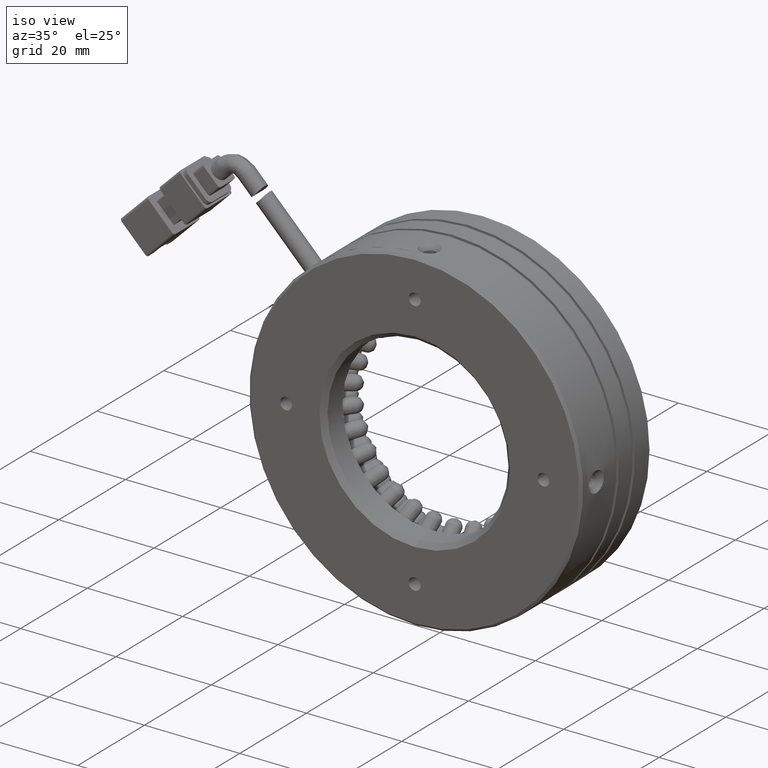
[diagram: clean part render]
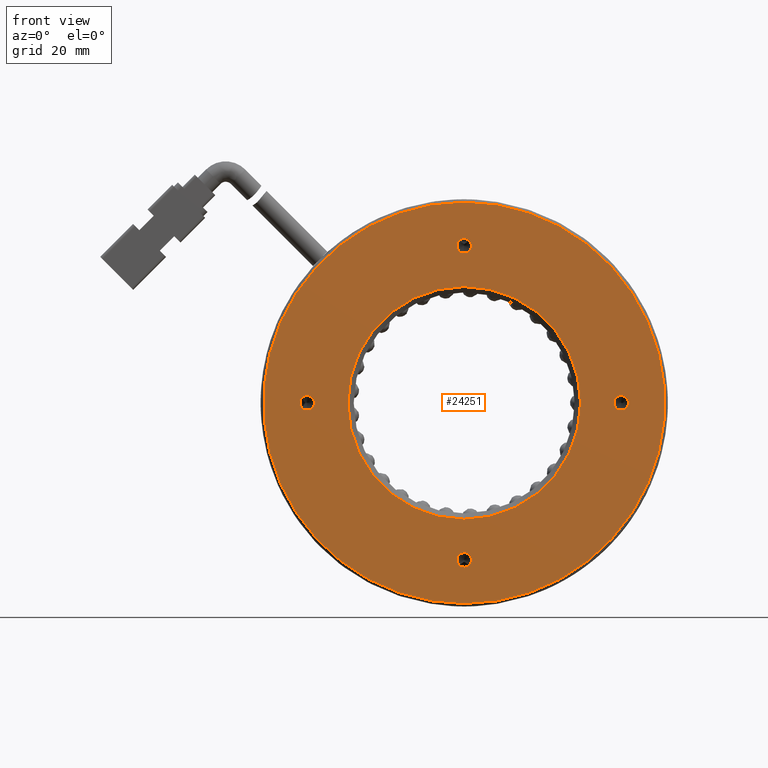
[diagram: tour spotlight — one face highlighted and labeled with its STEP entity id]
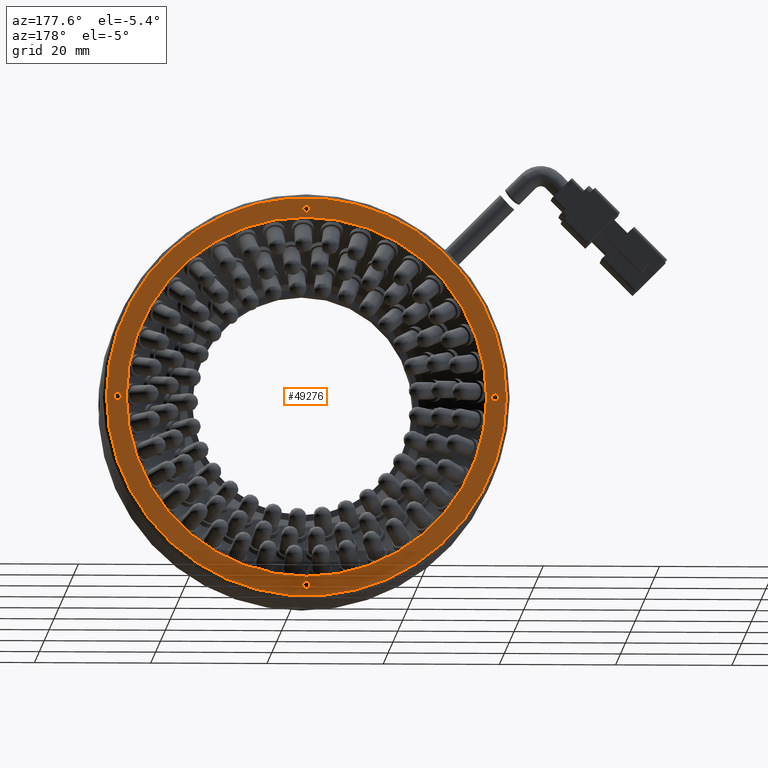
[diagram: tour spotlight — one face highlighted and labeled with its STEP entity id]
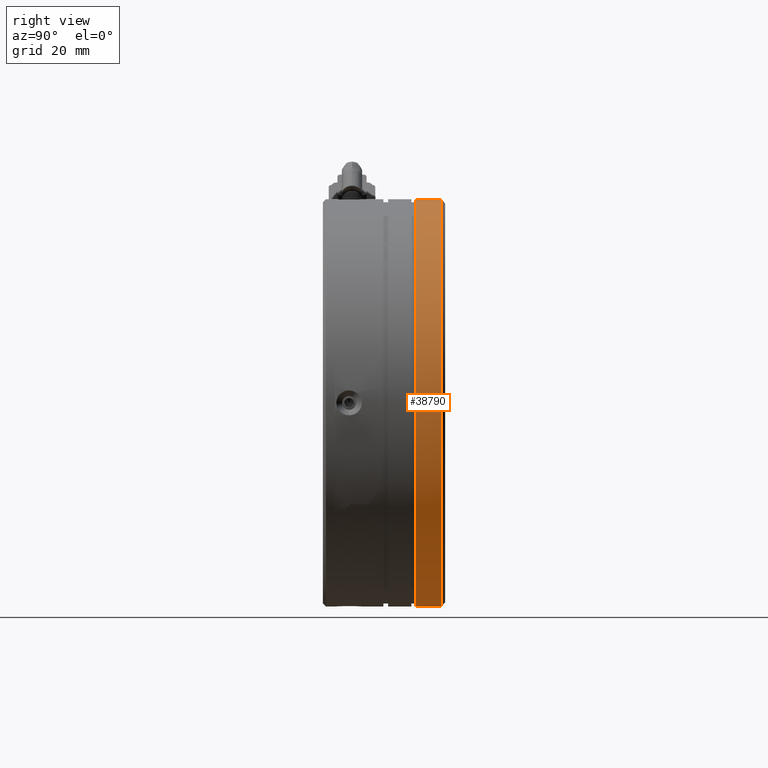
[diagram: tour spotlight — one face highlighted and labeled with its STEP entity id]
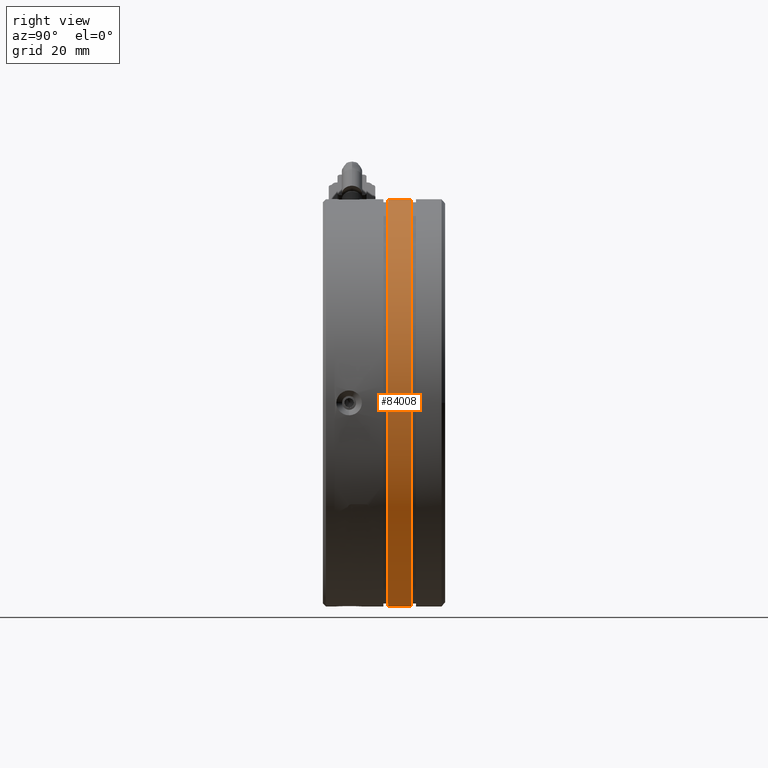
[diagram: tour spotlight — one face highlighted and labeled with its STEP entity id]
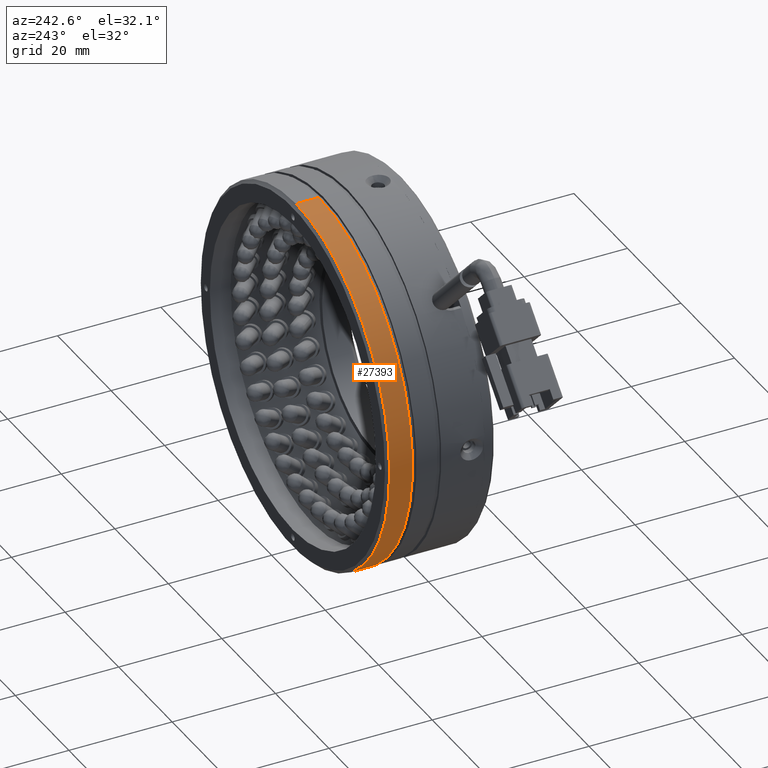
[diagram: tour spotlight — one face highlighted and labeled with its STEP entity id]
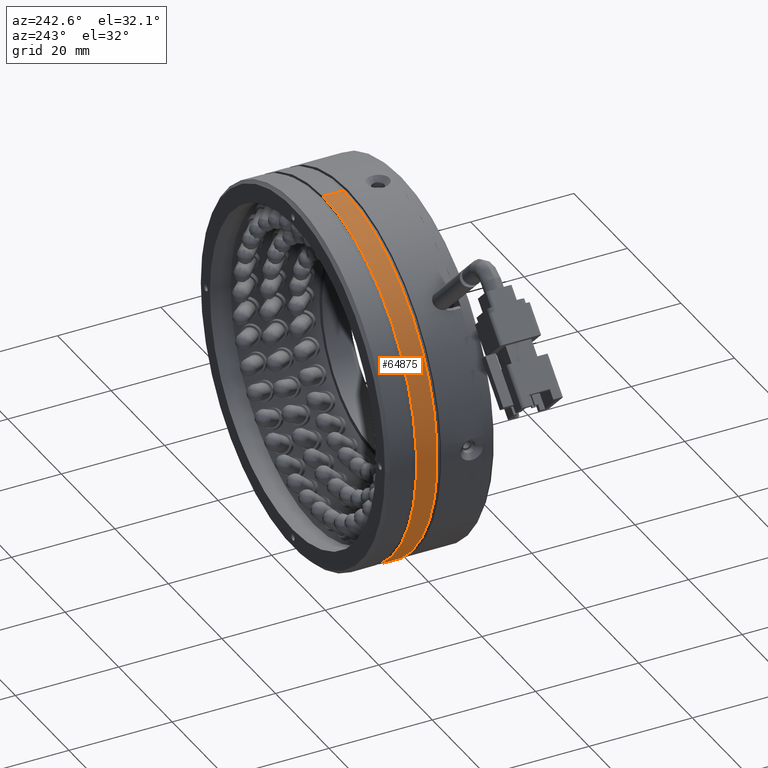
[diagram: tour spotlight — one face highlighted and labeled with its STEP entity id]
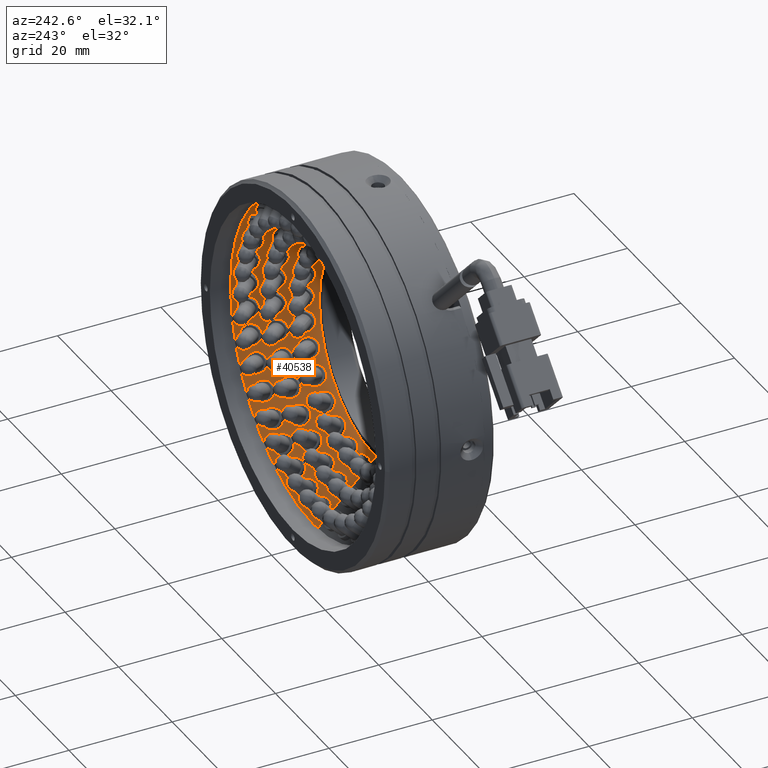
[diagram: tour spotlight — one face highlighted and labeled with its STEP entity id]
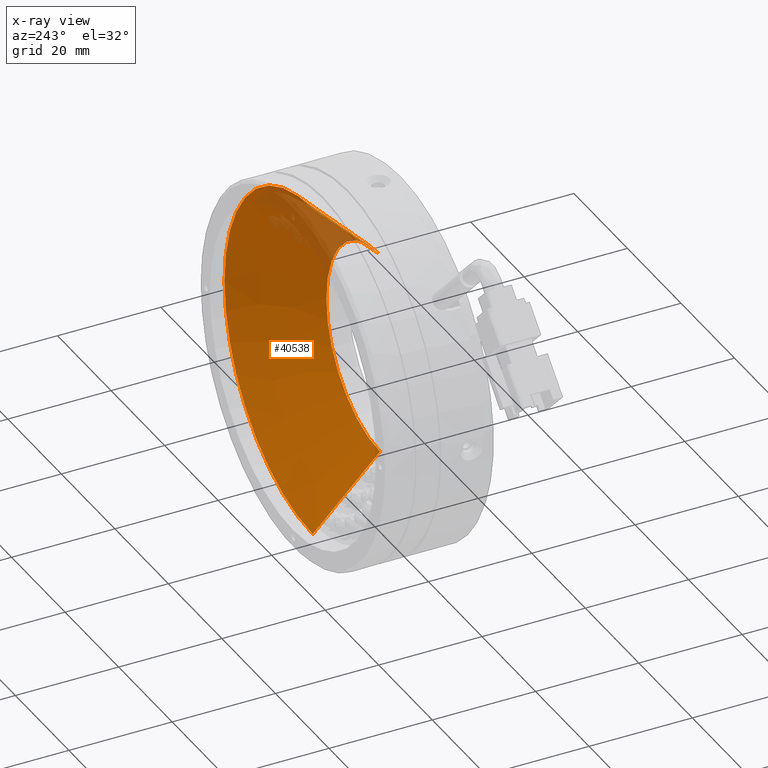
[diagram: x-ray of the same camera — body ghosted, this tour face saturated]
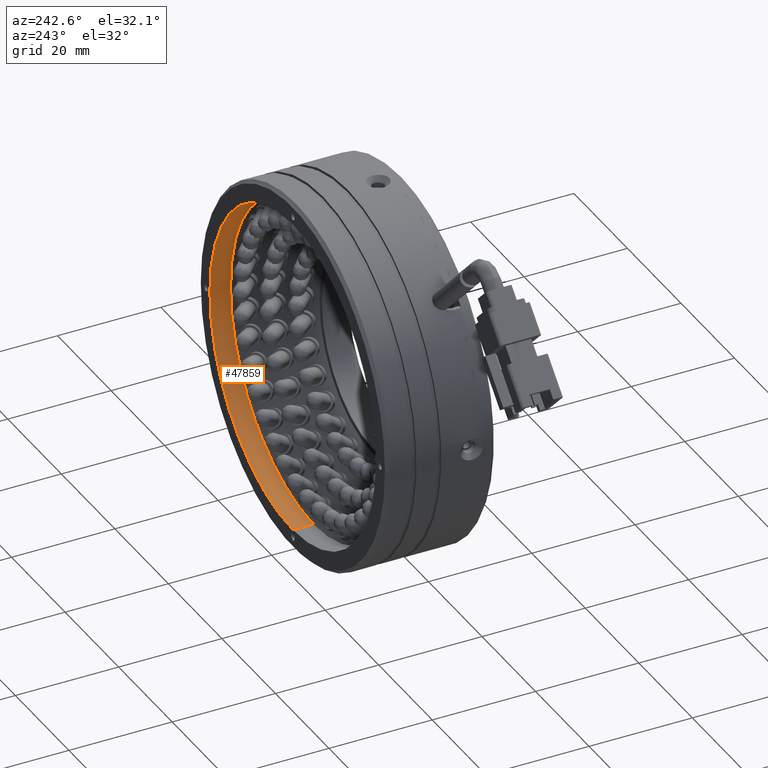
[diagram: tour spotlight — one face highlighted and labeled with its STEP entity id]
A machine part: a face-by-face anatomy tour. The part has 1900 B-rep faces; the first image is the clean iso view, then the 8 largest visible faces are spotlighted one at a time (largest first), each with its STEP entity span.

Face 1 — front view, entity #24251. In plain terms, the highlighted planar face has unit normal (0, 1, 0).
Definition (entity closure, byte-faithful):
#117 = ORIENTED_EDGE ( 'NONE', *, *, #12593, .F. ) ;
#526 = CARTESIAN_POINT ( 'NONE',  ( -29.71607102039149600, -3.692728664891308000, 1.249999999999903200 ) ) ;
#612 = EDGE_CURVE ( 'NONE', #48673, #35953, #79833, .T. ) ;
#799 = CARTESIAN_POINT ( 'NONE',  ( -2.716071020391305400, -3.692728664891308000, -28.24999999999999600 ) ) ;
#1328 = CIRCLE ( 'NONE', #64420, 34.50000000000002800 ) ;
#1868 = DIRECTION ( 'NONE',  ( -0.0000000000000000000, -1.000000000000000000, -0.0000000000000000000 ) ) ;
#3268 = ORIENTED_EDGE ( 'NONE', *, *, #50611, .F. ) ;
#4113 = ORIENTED_EDGE ( 'NONE', *, *, #9443, .F. ) ;
#4326 = CARTESIAN_POINT ( 'NONE',  ( -2.716071020391490200, -3.692728664891308000, -34.50000000000002800 ) ) ;
#4964 = ORIENTED_EDGE ( 'NONE', *, *, #43656, .F. ) ;
#5714 = FACE_BOUND ( 'NONE', #40120, .T. ) ;
#6467 = CIRCLE ( 'NONE', #10381, 1.249999999999997600 ) ;
#6742 = CARTESIAN_POINT ( 'NONE',  ( 24.28392897960850400, -3.692728664891308000, 2.831659657038609400E-013 ) ) ;
#7241 = CARTESIAN_POINT ( 'NONE',  ( -2.716071020391495100, -3.692728664891308000, 25.75000000000000400 ) ) ;
#8209 = ORIENTED_EDGE ( 'NONE', *, *, #51472, .F. ) ;
#9443 = EDGE_CURVE ( 'NONE', #64099, #25253, #1328, .T. ) ;
#9742 = DIRECTION ( 'NONE',  ( 0.0000000000000000000, -1.000000000000000000, 0.0000000000000000000 ) ) ;
#10381 = AXIS2_PLACEMENT_3D ( 'NONE', #17435, #64182, #24132 ) ;
#11475 = DIRECTION ( 'NONE',  ( 0.0000000000000000000, 1.000000000000000000, 0.0000000000000000000 ) ) ;
#11971 = CARTESIAN_POINT ( 'NONE',  ( 24.28392897960850400, -3.692728664891308000, -1.249999999999714500 ) ) ;
#12593 = EDGE_CURVE ( 'NONE', #66089, #70802, #52629, .T. ) ;
#13485 = DIRECTION ( 'NONE',  ( 0.0000000000000000000, 0.0000000000000000000, -1.000000000000000000 ) ) ;
#14045 = AXIS2_PLACEMENT_3D ( 'NONE', #41967, #1868, #48677 ) ;
#14717 = DIRECTION ( 'NONE',  ( 0.0000000000000000000, -1.000000000000000000, 0.0000000000000000000 ) ) ;
#15132 = CIRCLE ( 'NONE', #24823, 1.249999999999997600 ) ;
#15926 = VERTEX_POINT ( 'NONE', #526 ) ;
#16436 = EDGE_CURVE ( 'NONE', #25253, #64099, #49624, .T. ) ;
#16646 = ORIENTED_EDGE ( 'NONE', *, *, #71399, .F. ) ;
#17435 = CARTESIAN_POINT ( 'NONE',  ( -2.716071020391305400, -3.692728664891308000, -27.00000000000000000 ) ) ;
#17679 = CARTESIAN_POINT ( 'NONE',  ( -2.716071020391494600, -3.692728664891308000, -20.00000000000001800 ) ) ;
#17759 = DIRECTION ( 'NONE',  ( -0.0000000000000000000, 1.000000000000000000, 0.0000000000000000000 ) ) ;
#19152 = AXIS2_PLACEMENT_3D ( 'NONE', #49819, #9742, #56547 ) ;
#19966 = ORIENTED_EDGE ( 'NONE', *, *, #67881, .F. ) ;
#20114 = ORIENTED_EDGE ( 'NONE', *, *, #84409, .F. ) ;
#22014 = CARTESIAN_POINT ( 'NONE',  ( -2.716071020391492000, -3.692728664891308000, 20.00000000000001800 ) ) ;
#24132 = DIRECTION ( 'NONE',  ( 0.0000000000000000000, 0.0000000000000000000, -1.000000000000000000 ) ) ;
#24251 = ADVANCED_FACE ( 'NONE', ( #5714, #59145, #79150, #77046, #74944, #57059 ), #64729, .F. ) ;
#24684 = EDGE_LOOP ( 'NONE', ( #3268, #117 ) ) ;
#24823 = AXIS2_PLACEMENT_3D ( 'NONE', #72376, #32252, #79176 ) ;
#24953 = VERTEX_POINT ( 'NONE', #55580 ) ;
#25253 = VERTEX_POINT ( 'NONE', #4326 ) ;
#25586 = CARTESIAN_POINT ( 'NONE',  ( -2.716071020391305400, -3.692728664891308000, -25.75000000000000400 ) ) ;
#25590 = DIRECTION ( 'NONE',  ( -0.0000000000000000000, -1.000000000000000000, -0.0000000000000000000 ) ) ;
#26252 = EDGE_CURVE ( 'NONE', #37030, #77363, #6467, .T. ) ;
#26316 = ORIENTED_EDGE ( 'NONE', *, *, #16436, .F. ) ;
#27283 = AXIS2_PLACEMENT_3D ( 'NONE', #54826, #14717, #61542 ) ;
#27381 = DIRECTION ( 'NONE',  ( -0.0000000000000000000, 1.000000000000000000, 0.0000000000000000000 ) ) ;
#28863 = CIRCLE ( 'NONE', #19152, 20.00000000000001800 ) ;
#30927 = EDGE_LOOP ( 'NONE', ( #8209, #20114 ) ) ;
#32252 = DIRECTION ( 'NONE',  ( -0.0000000000000000000, -1.000000000000000000, -0.0000000000000000000 ) ) ;
#34788 = CIRCLE ( 'NONE', #64501, 1.249999999999997600 ) ;
#34995 = CARTESIAN_POINT ( 'NONE',  ( 24.28392897960850400, -3.692728664891308000, 1.250000000000280900 ) ) ;
#35173 = DIRECTION ( 'NONE',  ( -0.0000000000000000000, -1.000000000000000000, -0.0000000000000000000 ) ) ;
#35953 = VERTEX_POINT ( 'NONE', #34995 ) ;
#36792 = VERTEX_POINT ( 'NONE', #58760 ) ;
#37030 = VERTEX_POINT ( 'NONE', #799 ) ;
#37969 = VERTEX_POINT ( 'NONE', #7241 ) ;
#38343 = AXIS2_PLACEMENT_3D ( 'NONE', #75285, #35173, #82041 ) ;
#39543 = AXIS2_PLACEMENT_3D ( 'NONE', #6742, #53573, #13485 ) ;
#39986 = CARTESIAN_POINT ( 'NONE',  ( -29.71607102039149600, -3.692728664891308000, -9.462597340633178500E-014 ) ) ;
#40120 = EDGE_LOOP ( 'NONE', ( #4964, #19966 ) ) ;
#40949 = DIRECTION ( 'NONE',  ( 0.0000000000000000000, 0.0000000000000000000, -1.000000000000000000 ) ) ;
#41246 = DIRECTION ( 'NONE',  ( -0.0000000000000000000, -1.000000000000000000, -0.0000000000000000000 ) ) ;
#41265 = AXIS2_PLACEMENT_3D ( 'NONE', #41535, #41246, #40949 ) ;
#41535 = CARTESIAN_POINT ( 'NONE',  ( 24.28392897960850400, -3.692728664891308000, 2.831659657038609400E-013 ) ) ;
#41967 = CARTESIAN_POINT ( 'NONE',  ( -2.716071020391495100, -3.692728664891308000, 27.00000000000000000 ) ) ;
#42133 = CARTESIAN_POINT ( 'NONE',  ( -2.716071020391494600, -3.692728664891308000, 34.50000000000002800 ) ) ;
#43656 = EDGE_CURVE ( 'NONE', #37969, #36792, #74778, .T. ) ;
#45908 = EDGE_CURVE ( 'NONE', #35953, #48673, #73878, .T. ) ;
#46728 = DIRECTION ( 'NONE',  ( 0.0000000000000000000, 0.0000000000000000000, -1.000000000000000000 ) ) ;
#48673 = VERTEX_POINT ( 'NONE', #11971 ) ;
#48677 = DIRECTION ( 'NONE',  ( 0.0000000000000000000, 0.0000000000000000000, -1.000000000000000000 ) ) ;
#49624 = CIRCLE ( 'NONE', #57791, 34.50000000000002800 ) ;
#49819 = CARTESIAN_POINT ( 'NONE',  ( -2.716071020391494600, -3.692728664891308000, 0.0000000000000000000 ) ) ;
#50611 = EDGE_CURVE ( 'NONE', #70802, #66089, #28863, .T. ) ;
#51472 = EDGE_CURVE ( 'NONE', #24953, #15926, #60908, .T. ) ;
#51602 = CARTESIAN_POINT ( 'NONE',  ( -21.71607102039149200, -3.692728664891308000, 0.0000000000000000000 ) ) ;
#52629 = CIRCLE ( 'NONE', #27283, 20.00000000000001800 ) ;
#53573 = DIRECTION ( 'NONE',  ( -0.0000000000000000000, -1.000000000000000000, -0.0000000000000000000 ) ) ;
#53981 = AXIS2_PLACEMENT_3D ( 'NONE', #39986, #86904, #46728 ) ;
#54069 = ORIENTED_EDGE ( 'NONE', *, *, #612, .F. ) ;
#54826 = CARTESIAN_POINT ( 'NONE',  ( -2.716071020391494600, -3.692728664891308000, 0.0000000000000000000 ) ) ;
#55580 = CARTESIAN_POINT ( 'NONE',  ( -29.71607102039149600, -3.692728664891308000, -1.250000000000092100 ) ) ;
#56547 = DIRECTION ( 'NONE',  ( 0.0000000000000000000, 0.0000000000000000000, -1.000000000000000000 ) ) ;
#57059 = FACE_BOUND ( 'NONE', #24684, .T. ) ;
#57783 = CARTESIAN_POINT ( 'NONE',  ( -2.716071020391494600, -3.692728664891308000, 0.0000000000000000000 ) ) ;
#57791 = AXIS2_PLACEMENT_3D ( 'NONE', #67428, #27381, #74254 ) ;
#58294 = DIRECTION ( 'NONE',  ( 0.0000000000000000000, -0.0000000000000000000, 1.000000000000000000 ) ) ;
#58760 = CARTESIAN_POINT ( 'NONE',  ( -2.716071020391495100, -3.692728664891308000, 28.24999999999999600 ) ) ;
#59145 = FACE_BOUND ( 'NONE', #30927, .T. ) ;
#60908 = CIRCLE ( 'NONE', #53981, 1.249999999999997600 ) ;
#61139 = EDGE_LOOP ( 'NONE', ( #75168, #16646 ) ) ;
#61542 = DIRECTION ( 'NONE',  ( 0.0000000000000000000, 0.0000000000000000000, -1.000000000000000000 ) ) ;
#64099 = VERTEX_POINT ( 'NONE', #42133 ) ;
#64182 = DIRECTION ( 'NONE',  ( -0.0000000000000000000, -1.000000000000000000, -0.0000000000000000000 ) ) ;
#64420 = AXIS2_PLACEMENT_3D ( 'NONE', #57783, #17759, #64508 ) ;
#64430 = AXIS2_PLACEMENT_3D ( 'NONE', #51602, #11475, #58294 ) ;
#64501 = AXIS2_PLACEMENT_3D ( 'NONE', #65585, #25590, #72378 ) ;
#64508 = DIRECTION ( 'NONE',  ( 0.0000000000000000000, 0.0000000000000000000, 1.000000000000000000 ) ) ;
#64729 = PLANE ( 'NONE',  #64430 ) ;
#65585 = CARTESIAN_POINT ( 'NONE',  ( -29.71607102039149600, -3.692728664891308000, -9.462597340633178500E-014 ) ) ;
#66089 = VERTEX_POINT ( 'NONE', #22014 ) ;
#66439 = EDGE_LOOP ( 'NONE', ( #4113, #26316 ) ) ;
#67428 = CARTESIAN_POINT ( 'NONE',  ( -2.716071020391494600, -3.692728664891308000, 0.0000000000000000000 ) ) ;
#67881 = EDGE_CURVE ( 'NONE', #36792, #37969, #76409, .T. ) ;
#70802 = VERTEX_POINT ( 'NONE', #17679 ) ;
#71399 = EDGE_CURVE ( 'NONE', #77363, #37030, #15132, .T. ) ;
#72376 = CARTESIAN_POINT ( 'NONE',  ( -2.716071020391305400, -3.692728664891308000, -27.00000000000000000 ) ) ;
#72378 = DIRECTION ( 'NONE',  ( 0.0000000000000000000, 0.0000000000000000000, -1.000000000000000000 ) ) ;
#73878 = CIRCLE ( 'NONE', #39543, 1.249999999999997600 ) ;
#74254 = DIRECTION ( 'NONE',  ( 0.0000000000000000000, 0.0000000000000000000, 1.000000000000000000 ) ) ;
#74778 = CIRCLE ( 'NONE', #14045, 1.249999999999997600 ) ;
#74944 = FACE_OUTER_BOUND ( 'NONE', #66439, .T. ) ;
#75168 = ORIENTED_EDGE ( 'NONE', *, *, #26252, .F. ) ;
#75285 = CARTESIAN_POINT ( 'NONE',  ( -2.716071020391495100, -3.692728664891308000, 27.00000000000000000 ) ) ;
#76409 = CIRCLE ( 'NONE', #38343, 1.249999999999997600 ) ;
#77046 = FACE_BOUND ( 'NONE', #77900, .T. ) ;
#77363 = VERTEX_POINT ( 'NONE', #25586 ) ;
#77900 = EDGE_LOOP ( 'NONE', ( #54069, #81653 ) ) ;
#79150 = FACE_BOUND ( 'NONE', #61139, .T. ) ;
#79176 = DIRECTION ( 'NONE',  ( 0.0000000000000000000, 0.0000000000000000000, -1.000000000000000000 ) ) ;
#79833 = CIRCLE ( 'NONE', #41265, 1.249999999999997600 ) ;
#81653 = ORIENTED_EDGE ( 'NONE', *, *, #45908, .F. ) ;
#82041 = DIRECTION ( 'NONE',  ( 0.0000000000000000000, 0.0000000000000000000, -1.000000000000000000 ) ) ;
#84409 = EDGE_CURVE ( 'NONE', #15926, #24953, #34788, .T. ) ;
#86904 = DIRECTION ( 'NONE',  ( -0.0000000000000000000, -1.000000000000000000, -0.0000000000000000000 ) ) ;

Face 2 — auxiliary view, entity #49276. In plain terms, the highlighted planar face has unit normal (0, -1, 0).
Definition (entity closure, byte-faithful):
#478 = EDGE_CURVE ( 'NONE', #86418, #62394, #18057, .T. ) ;
#1899 = CIRCLE ( 'NONE', #53892, 0.6250000000000005600 ) ;
#2141 = CARTESIAN_POINT ( 'NONE',  ( 29.78392897960851100, 17.30727133510869800, -0.6250000000000016700 ) ) ;
#4684 = ORIENTED_EDGE ( 'NONE', *, *, #86537, .F. ) ;
#5918 = VERTEX_POINT ( 'NONE', #2141 ) ;
#6457 = DIRECTION ( 'NONE',  ( -0.0000000000000000000, 1.000000000000000000, -0.0000000000000000000 ) ) ;
#8079 = CIRCLE ( 'NONE', #61682, 0.6250000000000005600 ) ;
#9250 = CIRCLE ( 'NONE', #27914, 0.6250000000000005600 ) ;
#11376 = DIRECTION ( 'NONE',  ( -0.0000000000000000000, -1.000000000000000000, -0.0000000000000000000 ) ) ;
#11777 = CARTESIAN_POINT ( 'NONE',  ( -2.716071020391376500, 17.30727133510869800, -32.50000000000000000 ) ) ;
#11974 = CARTESIAN_POINT ( 'NONE',  ( -2.716071020391830800, 17.30727133510869800, 33.12500000000000000 ) ) ;
#12547 = EDGE_CURVE ( 'NONE', #26847, #74570, #16095, .T. ) ;
#13087 = AXIS2_PLACEMENT_3D ( 'NONE', #51487, #11376, #58189 ) ;
#13546 = EDGE_LOOP ( 'NONE', ( #51037, #80149 ) ) ;
#13589 = FACE_BOUND ( 'NONE', #46759, .T. ) ;
#13902 = CARTESIAN_POINT ( 'NONE',  ( -2.716071020391486200, 17.30727133510869800, 31.00000000000003600 ) ) ;
#15776 = EDGE_LOOP ( 'NONE', ( #63177, #33968 ) ) ;
#16095 = CIRCLE ( 'NONE', #60333, 0.6250000000000005600 ) ;
#18057 = CIRCLE ( 'NONE', #29467, 0.6250000000000005600 ) ;
#18198 = CARTESIAN_POINT ( 'NONE',  ( -2.716071020391830800, 17.30727133510869800, 32.50000000000000000 ) ) ;
#18410 = CARTESIAN_POINT ( 'NONE',  ( 29.78392897960851100, 17.30727133510869800, -1.131636017531745300E-015 ) ) ;
#18597 = DIRECTION ( 'NONE',  ( 0.0000000000000000000, 0.0000000000000000000, 1.000000000000000000 ) ) ;
#19286 = CARTESIAN_POINT ( 'NONE',  ( -37.11607102039153000, 17.30727133510869100, 3.117888375509573500E-015 ) ) ;
#22650 = ORIENTED_EDGE ( 'NONE', *, *, #38675, .F. ) ;
#23870 = VERTEX_POINT ( 'NONE', #13902 ) ;
#24927 = DIRECTION ( 'NONE',  ( 0.0000000000000000000, 0.0000000000000000000, 1.000000000000000000 ) ) ;
#25125 = DIRECTION ( 'NONE',  ( 0.0000000000000000000, 0.0000000000000000000, 1.000000000000000000 ) ) ;
#26060 = CARTESIAN_POINT ( 'NONE',  ( -2.716071020391490200, 17.30727133510869100, -1.131636017531745300E-015 ) ) ;
#26847 = VERTEX_POINT ( 'NONE', #44179 ) ;
#27334 = DIRECTION ( 'NONE',  ( -0.0000000000000000000, 1.000000000000000000, -0.0000000000000000000 ) ) ;
#27536 = CARTESIAN_POINT ( 'NONE',  ( 29.78392897960851100, 17.30727133510869800, 0.6249999999999994400 ) ) ;
#27708 = DIRECTION ( 'NONE',  ( 0.0000000000000000000, 0.0000000000000000000, 1.000000000000000000 ) ) ;
#27914 = AXIS2_PLACEMENT_3D ( 'NONE', #34242, #81140, #40970 ) ;
#28004 = DIRECTION ( 'NONE',  ( -0.0000000000000000000, 1.000000000000000000, -0.0000000000000000000 ) ) ;
#28194 = CIRCLE ( 'NONE', #60662, 34.40000000000004100 ) ;
#28285 = CARTESIAN_POINT ( 'NONE',  ( -2.716071020391830800, 17.30727133510869800, 32.50000000000000000 ) ) ;
#29467 = AXIS2_PLACEMENT_3D ( 'NONE', #28285, #28004, #27708 ) ;
#29853 = VERTEX_POINT ( 'NONE', #66497 ) ;
#30948 = CIRCLE ( 'NONE', #56355, 31.00000000000003600 ) ;
#31043 = CARTESIAN_POINT ( 'NONE',  ( -2.716071020391490200, 17.30727133510869800, -1.131636017531745300E-015 ) ) ;
#31334 = EDGE_CURVE ( 'NONE', #36264, #81904, #9250, .T. ) ;
#31339 = VERTEX_POINT ( 'NONE', #27536 ) ;
#32738 = DIRECTION ( 'NONE',  ( 1.000000000000000000, 0.0000000000000000000, 0.0000000000000000000 ) ) ;
#33968 = ORIENTED_EDGE ( 'NONE', *, *, #79733, .F. ) ;
#34242 = CARTESIAN_POINT ( 'NONE',  ( -2.716071020391376500, 17.30727133510869800, -32.50000000000000000 ) ) ;
#34546 = AXIS2_PLACEMENT_3D ( 'NONE', #46554, #6457, #53288 ) ;
#34681 = EDGE_CURVE ( 'NONE', #31339, #5918, #41121, .T. ) ;
#35264 = CARTESIAN_POINT ( 'NONE',  ( -2.716071020391490200, 17.30727133510869100, -1.131636017531745300E-015 ) ) ;
#36264 = VERTEX_POINT ( 'NONE', #38399 ) ;
#37439 = AXIS2_PLACEMENT_3D ( 'NONE', #78392, #38230, #85125 ) ;
#37796 = DIRECTION ( 'NONE',  ( 0.0000000000000000000, 0.0000000000000000000, -1.000000000000000000 ) ) ;
#38084 = CARTESIAN_POINT ( 'NONE',  ( -2.716071020391830800, 17.30727133510869800, 31.87500000000000000 ) ) ;
#38230 = DIRECTION ( 'NONE',  ( 0.0000000000000000000, -1.000000000000000000, 0.0000000000000000000 ) ) ;
#38338 = DIRECTION ( 'NONE',  ( -0.0000000000000000000, 1.000000000000000000, -0.0000000000000000000 ) ) ;
#38399 = CARTESIAN_POINT ( 'NONE',  ( -2.716071020391376500, 17.30727133510869800, -31.87500000000000000 ) ) ;
#38508 = CARTESIAN_POINT ( 'NONE',  ( -2.716071020391376500, 17.30727133510869800, -33.12500000000000000 ) ) ;
#38675 = EDGE_CURVE ( 'NONE', #29853, #52963, #69068, .T. ) ;
#39587 = ORIENTED_EDGE ( 'NONE', *, *, #60600, .T. ) ;
#40970 = DIRECTION ( 'NONE',  ( 0.0000000000000000000, 0.0000000000000000000, 1.000000000000000000 ) ) ;
#41121 = CIRCLE ( 'NONE', #75154, 0.6250000000000005600 ) ;
#41961 = DIRECTION ( 'NONE',  ( 1.000000000000000000, 0.0000000000000000000, 0.0000000000000000000 ) ) ;
#42626 = CIRCLE ( 'NONE', #71700, 0.6250000000000005600 ) ;
#44179 = CARTESIAN_POINT ( 'NONE',  ( -35.21607102039148900, 17.30727133510869800, 0.6249999999999994400 ) ) ;
#45715 = EDGE_CURVE ( 'NONE', #23870, #62571, #30948, .T. ) ;
#46554 = CARTESIAN_POINT ( 'NONE',  ( -35.21607102039148900, 17.30727133510869800, -1.131636017531745300E-015 ) ) ;
#46759 = EDGE_LOOP ( 'NONE', ( #62201, #70060 ) ) ;
#47080 = FACE_BOUND ( 'NONE', #13546, .T. ) ;
#47654 = CARTESIAN_POINT ( 'NONE',  ( -2.716071020391490200, 17.30727133510869800, -31.00000000000003600 ) ) ;
#49276 = ADVANCED_FACE ( 'NONE', ( #82792, #51293, #84867, #13589, #64851, #47080 ), #84827, .F. ) ;
#50180 = EDGE_CURVE ( 'NONE', #62394, #86418, #8079, .T. ) ;
#51037 = ORIENTED_EDGE ( 'NONE', *, *, #50180, .F. ) ;
#51293 = FACE_OUTER_BOUND ( 'NONE', #56067, .T. ) ;
#51487 = CARTESIAN_POINT ( 'NONE',  ( -2.716071020391490200, 17.30727133510869800, -1.131636017531745300E-015 ) ) ;
#52963 = VERTEX_POINT ( 'NONE', #19286 ) ;
#53288 = DIRECTION ( 'NONE',  ( 0.0000000000000000000, 0.0000000000000000000, 1.000000000000000000 ) ) ;
#53534 = EDGE_CURVE ( 'NONE', #81904, #36264, #42626, .T. ) ;
#53892 = AXIS2_PLACEMENT_3D ( 'NONE', #78509, #38338, #85253 ) ;
#56067 = EDGE_LOOP ( 'NONE', ( #22650, #78874 ) ) ;
#56355 = AXIS2_PLACEMENT_3D ( 'NONE', #31043, #77997, #37796 ) ;
#56546 = EDGE_LOOP ( 'NONE', ( #39587, #62309 ) ) ;
#57541 = CIRCLE ( 'NONE', #34546, 0.6250000000000005600 ) ;
#58189 = DIRECTION ( 'NONE',  ( 0.0000000000000000000, 0.0000000000000000000, -1.000000000000000000 ) ) ;
#58618 = DIRECTION ( 'NONE',  ( -0.0000000000000000000, 1.000000000000000000, -0.0000000000000000000 ) ) ;
#60333 = AXIS2_PLACEMENT_3D ( 'NONE', #67384, #27334, #74206 ) ;
#60600 = EDGE_CURVE ( 'NONE', #62571, #23870, #81074, .T. ) ;
#60662 = AXIS2_PLACEMENT_3D ( 'NONE', #26060, #72887, #32738 ) ;
#61682 = AXIS2_PLACEMENT_3D ( 'NONE', #18198, #64932, #24927 ) ;
#62176 = AXIS2_PLACEMENT_3D ( 'NONE', #35264, #82135, #41961 ) ;
#62201 = ORIENTED_EDGE ( 'NONE', *, *, #31334, .F. ) ;
#62309 = ORIENTED_EDGE ( 'NONE', *, *, #45715, .T. ) ;
#62394 = VERTEX_POINT ( 'NONE', #11974 ) ;
#62571 = VERTEX_POINT ( 'NONE', #47654 ) ;
#63177 = ORIENTED_EDGE ( 'NONE', *, *, #34681, .F. ) ;
#64629 = CARTESIAN_POINT ( 'NONE',  ( -35.21607102039148900, 17.30727133510869800, -0.6250000000000016700 ) ) ;
#64851 = FACE_BOUND ( 'NONE', #15776, .T. ) ;
#64932 = DIRECTION ( 'NONE',  ( -0.0000000000000000000, 1.000000000000000000, -0.0000000000000000000 ) ) ;
#65131 = DIRECTION ( 'NONE',  ( -0.0000000000000000000, 1.000000000000000000, -0.0000000000000000000 ) ) ;
#66495 = EDGE_LOOP ( 'NONE', ( #71928, #4684 ) ) ;
#66497 = CARTESIAN_POINT ( 'NONE',  ( 31.68392897960855200, 17.30727133510869100, -1.131636017531745300E-015 ) ) ;
#67384 = CARTESIAN_POINT ( 'NONE',  ( -35.21607102039148900, 17.30727133510869800, -1.131636017531745300E-015 ) ) ;
#69068 = CIRCLE ( 'NONE', #62176, 34.40000000000004100 ) ;
#70060 = ORIENTED_EDGE ( 'NONE', *, *, #53534, .F. ) ;
#71700 = AXIS2_PLACEMENT_3D ( 'NONE', #11777, #58618, #18597 ) ;
#71928 = ORIENTED_EDGE ( 'NONE', *, *, #12547, .F. ) ;
#72887 = DIRECTION ( 'NONE',  ( -4.956352788505163400E-017, -1.000000000000000000, 0.0000000000000000000 ) ) ;
#74206 = DIRECTION ( 'NONE',  ( 0.0000000000000000000, 0.0000000000000000000, 1.000000000000000000 ) ) ;
#74570 = VERTEX_POINT ( 'NONE', #64629 ) ;
#75154 = AXIS2_PLACEMENT_3D ( 'NONE', #18410, #65131, #25125 ) ;
#76190 = EDGE_CURVE ( 'NONE', #52963, #29853, #28194, .T. ) ;
#77997 = DIRECTION ( 'NONE',  ( -0.0000000000000000000, -1.000000000000000000, -0.0000000000000000000 ) ) ;
#78392 = CARTESIAN_POINT ( 'NONE',  ( -37.71607102039152400, 17.30727133510869800, -1.131636017531745300E-015 ) ) ;
#78509 = CARTESIAN_POINT ( 'NONE',  ( 29.78392897960851100, 17.30727133510869800, -1.131636017531745300E-015 ) ) ;
#78874 = ORIENTED_EDGE ( 'NONE', *, *, #76190, .F. ) ;
#79733 = EDGE_CURVE ( 'NONE', #5918, #31339, #1899, .T. ) ;
#80149 = ORIENTED_EDGE ( 'NONE', *, *, #478, .F. ) ;
#81074 = CIRCLE ( 'NONE', #13087, 31.00000000000003600 ) ;
#81140 = DIRECTION ( 'NONE',  ( -0.0000000000000000000, 1.000000000000000000, -0.0000000000000000000 ) ) ;
#81904 = VERTEX_POINT ( 'NONE', #38508 ) ;
#82135 = DIRECTION ( 'NONE',  ( -4.956352788505163400E-017, -1.000000000000000000, 0.0000000000000000000 ) ) ;
#82792 = FACE_BOUND ( 'NONE', #56546, .T. ) ;
#84827 = PLANE ( 'NONE',  #37439 ) ;
#84867 = FACE_BOUND ( 'NONE', #66495, .T. ) ;
#85125 = DIRECTION ( 'NONE',  ( 0.0000000000000000000, -0.0000000000000000000, -1.000000000000000000 ) ) ;
#85253 = DIRECTION ( 'NONE',  ( 0.0000000000000000000, 0.0000000000000000000, 1.000000000000000000 ) ) ;
#86418 = VERTEX_POINT ( 'NONE', #38084 ) ;
#86537 = EDGE_CURVE ( 'NONE', #74570, #26847, #57541, .T. ) ;

Face 3 — right view, entity #38790. In plain terms, the highlighted cylindrical surface (partial cylindrical patch) has radius 35 mm, axis along (-0, -1, -0).
Definition (entity closure, byte-faithful):
#296 = CIRCLE ( 'NONE', #43613, 35.00000000000001400 ) ;
#1403 = LINE ( 'NONE', #31174, #52689 ) ;
#3114 = CIRCLE ( 'NONE', #51824, 35.00000000000001400 ) ;
#3295 = DIRECTION ( 'NONE',  ( 0.0000000000000000000, 0.0000000000000000000, -1.000000000000000000 ) ) ;
#4036 = CYLINDRICAL_SURFACE ( 'NONE', #4925, 35.00000000000001400 ) ;
#4925 = AXIS2_PLACEMENT_3D ( 'NONE', #22966, #63284, #3295 ) ;
#6105 = CARTESIAN_POINT ( 'NONE',  ( -2.716071020391490200, 16.70727133510872500, -35.00000000000001400 ) ) ;
#10670 = AXIS2_PLACEMENT_3D ( 'NONE', #16533, #63297, #23271 ) ;
#16533 = CARTESIAN_POINT ( 'NONE',  ( -2.716071020391490200, 12.30727133510869100, -1.131636017531745300E-015 ) ) ;
#17103 = CARTESIAN_POINT ( 'NONE',  ( -2.716071020391490200, 12.30727133510869100, -35.00000000000001400 ) ) ;
#17407 = VERTEX_POINT ( 'NONE', #6105 ) ;
#18117 = VERTEX_POINT ( 'NONE', #54919 ) ;
#21078 = DIRECTION ( 'NONE',  ( -0.0000000000000000000, -1.000000000000000000, -0.0000000000000000000 ) ) ;
#22094 = ORIENTED_EDGE ( 'NONE', *, *, #76295, .T. ) ;
#22966 = CARTESIAN_POINT ( 'NONE',  ( -2.716071020391490200, -13.32601881678534500, -1.131636017531745300E-015 ) ) ;
#23271 = DIRECTION ( 'NONE',  ( 0.0000000000000000000, 0.0000000000000000000, -1.000000000000000000 ) ) ;
#24507 = DIRECTION ( 'NONE',  ( -0.0000000000000000000, -1.000000000000000000, -0.0000000000000000000 ) ) ;
#27492 = EDGE_CURVE ( 'NONE', #17407, #45672, #1403, .T. ) ;
#27581 = EDGE_CURVE ( 'NONE', #18117, #17407, #296, .T. ) ;
#30170 = LINE ( 'NONE', #47659, #63657 ) ;
#31174 = CARTESIAN_POINT ( 'NONE',  ( -2.716071020391490200, -13.32601881678534500, -35.00000000000001400 ) ) ;
#32619 = CARTESIAN_POINT ( 'NONE',  ( -2.716071020391490200, 16.70727133510872900, -1.131636017531745300E-015 ) ) ;
#33272 = CARTESIAN_POINT ( 'NONE',  ( -2.716071020391490200, 16.70727133510872900, -1.131636017531745300E-015 ) ) ;
#35681 = ORIENTED_EDGE ( 'NONE', *, *, #70702, .T. ) ;
#38790 = ADVANCED_FACE ( 'NONE', ( #65829 ), #4036, .T. ) ;
#39374 = DIRECTION ( 'NONE',  ( 0.0000000000000000000, -9.912705577010321900E-017, -1.000000000000000000 ) ) ;
#39972 = DIRECTION ( 'NONE',  ( 0.0000000000000000000, -9.912705577010321900E-017, -1.000000000000000000 ) ) ;
#40742 = CARTESIAN_POINT ( 'NONE',  ( -2.716071020391485700, 16.70727133510872900, 35.00000000000001400 ) ) ;
#43613 = AXIS2_PLACEMENT_3D ( 'NONE', #32619, #79554, #39374 ) ;
#45672 = VERTEX_POINT ( 'NONE', #17103 ) ;
#46407 = CARTESIAN_POINT ( 'NONE',  ( -2.716071020391485700, 12.30727133510869100, 35.00000000000001400 ) ) ;
#47659 = CARTESIAN_POINT ( 'NONE',  ( -2.716071020391485700, -13.32601881678534500, 35.00000000000001400 ) ) ;
#51824 = AXIS2_PLACEMENT_3D ( 'NONE', #33272, #80184, #39972 ) ;
#52689 = VECTOR ( 'NONE', #24507, 1000.000000000000000 ) ;
#54919 = CARTESIAN_POINT ( 'NONE',  ( 32.28392897960851800, 16.70727133510872900, -1.131636017531745300E-015 ) ) ;
#63284 = DIRECTION ( 'NONE',  ( -0.0000000000000000000, -1.000000000000000000, -0.0000000000000000000 ) ) ;
#63297 = DIRECTION ( 'NONE',  ( 0.0000000000000000000, 1.000000000000000000, 0.0000000000000000000 ) ) ;
#63657 = VECTOR ( 'NONE', #21078, 1000.000000000000000 ) ;
#65829 = FACE_OUTER_BOUND ( 'NONE', #68769, .T. ) ;
#68769 = EDGE_LOOP ( 'NONE', ( #85432, #22094, #35681, #85078, #77616 ) ) ;
#70702 = EDGE_CURVE ( 'NONE', #83859, #45672, #81358, .T. ) ;
#72394 = EDGE_CURVE ( 'NONE', #74250, #18117, #3114, .T. ) ;
#74250 = VERTEX_POINT ( 'NONE', #40742 ) ;
#76295 = EDGE_CURVE ( 'NONE', #74250, #83859, #30170, .T. ) ;
#77616 = ORIENTED_EDGE ( 'NONE', *, *, #27581, .F. ) ;
#79554 = DIRECTION ( 'NONE',  ( 0.0000000000000000000, 1.000000000000000000, 0.0000000000000000000 ) ) ;
#80184 = DIRECTION ( 'NONE',  ( 0.0000000000000000000, 1.000000000000000000, 0.0000000000000000000 ) ) ;
#81358 = CIRCLE ( 'NONE', #10670, 35.00000000000001400 ) ;
#83859 = VERTEX_POINT ( 'NONE', #46407 ) ;
#85078 = ORIENTED_EDGE ( 'NONE', *, *, #27492, .F. ) ;
#85432 = ORIENTED_EDGE ( 'NONE', *, *, #72394, .F. ) ;

Face 4 — right view, entity #84008. In plain terms, the highlighted cylindrical surface (partial cylindrical patch) has radius 35 mm, axis along (-0, -1, -0).
Definition (entity closure, byte-faithful):
#737 = DIRECTION ( 'NONE',  ( -0.0000000000000000000, -1.000000000000000000, -0.0000000000000000000 ) ) ;
#1640 = DIRECTION ( 'NONE',  ( -0.0000000000000000000, -1.000000000000000000, -0.0000000000000000000 ) ) ;
#1855 = DIRECTION ( 'NONE',  ( -0.0000000000000000000, -1.000000000000000000, -0.0000000000000000000 ) ) ;
#8748 = CYLINDRICAL_SURFACE ( 'NONE', #14014, 35.00000000000001400 ) ;
#9453 = CIRCLE ( 'NONE', #58583, 35.00000000000001400 ) ;
#9511 = CARTESIAN_POINT ( 'NONE',  ( -2.716071020391485700, 11.50727133510869200, 35.00000000000001400 ) ) ;
#11114 = VECTOR ( 'NONE', #61044, 1000.000000000000000 ) ;
#12857 = ORIENTED_EDGE ( 'NONE', *, *, #32463, .T. ) ;
#14014 = AXIS2_PLACEMENT_3D ( 'NONE', #27711, #737, #54588 ) ;
#16343 = DIRECTION ( 'NONE',  ( 0.0000000000000000000, 1.000000000000000000, 0.0000000000000000000 ) ) ;
#23880 = EDGE_CURVE ( 'NONE', #49556, #86005, #28972, .T. ) ;
#27711 = CARTESIAN_POINT ( 'NONE',  ( -2.716071020391490200, -13.32601881678534500, -1.131636017531745300E-015 ) ) ;
#28807 = CARTESIAN_POINT ( 'NONE',  ( -2.716071020391485700, -13.32601881678534500, 35.00000000000001400 ) ) ;
#28972 = LINE ( 'NONE', #54024, #11114 ) ;
#32463 = EDGE_CURVE ( 'NONE', #33400, #74191, #47618, .T. ) ;
#33400 = VERTEX_POINT ( 'NONE', #9511 ) ;
#36841 = CIRCLE ( 'NONE', #86845, 35.00000000000001400 ) ;
#37724 = EDGE_LOOP ( 'NONE', ( #85930, #12857, #71143, #74609 ) ) ;
#38160 = EDGE_CURVE ( 'NONE', #74191, #86005, #36841, .T. ) ;
#41735 = CARTESIAN_POINT ( 'NONE',  ( -2.716071020391490200, 11.50727133510869200, -1.131636017531745300E-015 ) ) ;
#45512 = VECTOR ( 'NONE', #1855, 1000.000000000000000 ) ;
#47618 = LINE ( 'NONE', #28807, #45512 ) ;
#48428 = DIRECTION ( 'NONE',  ( 0.0000000000000000000, 0.0000000000000000000, -1.000000000000000000 ) ) ;
#49556 = VERTEX_POINT ( 'NONE', #61905 ) ;
#50625 = FACE_OUTER_BOUND ( 'NONE', #37724, .T. ) ;
#54024 = CARTESIAN_POINT ( 'NONE',  ( -2.716071020391490200, -13.32601881678534500, -35.00000000000001400 ) ) ;
#54588 = DIRECTION ( 'NONE',  ( 0.0000000000000000000, 0.0000000000000000000, -1.000000000000000000 ) ) ;
#56384 = CARTESIAN_POINT ( 'NONE',  ( -2.716071020391490200, 7.507271335108692200, -1.131636017531745300E-015 ) ) ;
#58583 = AXIS2_PLACEMENT_3D ( 'NONE', #41735, #1640, #48428 ) ;
#61044 = DIRECTION ( 'NONE',  ( -0.0000000000000000000, -1.000000000000000000, -0.0000000000000000000 ) ) ;
#61462 = EDGE_CURVE ( 'NONE', #49556, #33400, #9453, .T. ) ;
#61905 = CARTESIAN_POINT ( 'NONE',  ( -2.716071020391490200, 11.50727133510869200, -35.00000000000001400 ) ) ;
#63117 = DIRECTION ( 'NONE',  ( 0.0000000000000000000, 0.0000000000000000000, -1.000000000000000000 ) ) ;
#71143 = ORIENTED_EDGE ( 'NONE', *, *, #38160, .T. ) ;
#73566 = CARTESIAN_POINT ( 'NONE',  ( -2.716071020391485700, 7.507271335108692200, 35.00000000000001400 ) ) ;
#74180 = CARTESIAN_POINT ( 'NONE',  ( -2.716071020391490200, 7.507271335108692200, -35.00000000000001400 ) ) ;
#74191 = VERTEX_POINT ( 'NONE', #73566 ) ;
#74609 = ORIENTED_EDGE ( 'NONE', *, *, #23880, .F. ) ;
#84008 = ADVANCED_FACE ( 'NONE', ( #50625 ), #8748, .T. ) ;
#85930 = ORIENTED_EDGE ( 'NONE', *, *, #61462, .T. ) ;
#86005 = VERTEX_POINT ( 'NONE', #74180 ) ;
#86845 = AXIS2_PLACEMENT_3D ( 'NONE', #56384, #16343, #63117 ) ;

Face 5 — auxiliary view, entity #27393. In plain terms, the highlighted cylindrical surface (partial cylindrical patch) has radius 35 mm, axis along (-0, -1, -0).
Definition (entity closure, byte-faithful):
#730 = EDGE_CURVE ( 'NONE', #45672, #83859, #40836, .T. ) ;
#975 = EDGE_CURVE ( 'NONE', #43134, #74250, #33437, .T. ) ;
#1403 = LINE ( 'NONE', #31174, #52689 ) ;
#3779 = ORIENTED_EDGE ( 'NONE', *, *, #730, .T. ) ;
#6105 = CARTESIAN_POINT ( 'NONE',  ( -2.716071020391490200, 16.70727133510872500, -35.00000000000001400 ) ) ;
#6464 = DIRECTION ( 'NONE',  ( 0.0000000000000000000, 1.000000000000000000, 0.0000000000000000000 ) ) ;
#8793 = DIRECTION ( 'NONE',  ( 0.0000000000000000000, 0.0000000000000000000, -1.000000000000000000 ) ) ;
#9576 = CARTESIAN_POINT ( 'NONE',  ( -37.71607102039150300, 16.70727133510872900, 3.154627779483993200E-015 ) ) ;
#10435 = DIRECTION ( 'NONE',  ( -0.0000000000000000000, -1.000000000000000000, -0.0000000000000000000 ) ) ;
#12640 = AXIS2_PLACEMENT_3D ( 'NONE', #22439, #6464, #8793 ) ;
#15692 = ORIENTED_EDGE ( 'NONE', *, *, #76295, .F. ) ;
#17103 = CARTESIAN_POINT ( 'NONE',  ( -2.716071020391490200, 12.30727133510869100, -35.00000000000001400 ) ) ;
#17407 = VERTEX_POINT ( 'NONE', #6105 ) ;
#21078 = DIRECTION ( 'NONE',  ( -0.0000000000000000000, -1.000000000000000000, -0.0000000000000000000 ) ) ;
#22439 = CARTESIAN_POINT ( 'NONE',  ( -2.716071020391490200, 12.30727133510869100, -1.131636017531745300E-015 ) ) ;
#24396 = DIRECTION ( 'NONE',  ( 0.0000000000000000000, 1.000000000000000000, 0.0000000000000000000 ) ) ;
#24507 = DIRECTION ( 'NONE',  ( -0.0000000000000000000, -1.000000000000000000, -0.0000000000000000000 ) ) ;
#24747 = EDGE_LOOP ( 'NONE', ( #15692, #34137, #37779, #76209, #3779 ) ) ;
#24882 = DIRECTION ( 'NONE',  ( 0.0000000000000000000, 1.000000000000000000, 0.0000000000000000000 ) ) ;
#27393 = ADVANCED_FACE ( 'NONE', ( #49986 ), #53080, .T. ) ;
#27492 = EDGE_CURVE ( 'NONE', #17407, #45672, #1403, .T. ) ;
#30170 = LINE ( 'NONE', #47659, #63657 ) ;
#31174 = CARTESIAN_POINT ( 'NONE',  ( -2.716071020391490200, -13.32601881678534500, -35.00000000000001400 ) ) ;
#33422 = AXIS2_PLACEMENT_3D ( 'NONE', #64884, #24882, #71688 ) ;
#33437 = CIRCLE ( 'NONE', #33422, 35.00000000000001400 ) ;
#34137 = ORIENTED_EDGE ( 'NONE', *, *, #975, .F. ) ;
#37369 = DIRECTION ( 'NONE',  ( 0.0000000000000000000, 0.0000000000000000000, -1.000000000000000000 ) ) ;
#37779 = ORIENTED_EDGE ( 'NONE', *, *, #41592, .F. ) ;
#40742 = CARTESIAN_POINT ( 'NONE',  ( -2.716071020391485700, 16.70727133510872900, 35.00000000000001400 ) ) ;
#40836 = CIRCLE ( 'NONE', #12640, 35.00000000000001400 ) ;
#41592 = EDGE_CURVE ( 'NONE', #17407, #43134, #65366, .T. ) ;
#43134 = VERTEX_POINT ( 'NONE', #9576 ) ;
#45672 = VERTEX_POINT ( 'NONE', #17103 ) ;
#46407 = CARTESIAN_POINT ( 'NONE',  ( -2.716071020391485700, 12.30727133510869100, 35.00000000000001400 ) ) ;
#47659 = CARTESIAN_POINT ( 'NONE',  ( -2.716071020391485700, -13.32601881678534500, 35.00000000000001400 ) ) ;
#49986 = FACE_OUTER_BOUND ( 'NONE', #24747, .T. ) ;
#52689 = VECTOR ( 'NONE', #24507, 1000.000000000000000 ) ;
#53080 = CYLINDRICAL_SURFACE ( 'NONE', #58724, 35.00000000000001400 ) ;
#55826 = AXIS2_PLACEMENT_3D ( 'NONE', #64435, #24396, #71192 ) ;
#58724 = AXIS2_PLACEMENT_3D ( 'NONE', #77529, #10435, #37369 ) ;
#63657 = VECTOR ( 'NONE', #21078, 1000.000000000000000 ) ;
#64435 = CARTESIAN_POINT ( 'NONE',  ( -2.716071020391490200, 16.70727133510872900, -1.131636017531745300E-015 ) ) ;
#64884 = CARTESIAN_POINT ( 'NONE',  ( -2.716071020391490200, 16.70727133510872900, -1.131636017531745300E-015 ) ) ;
#65366 = CIRCLE ( 'NONE', #55826, 35.00000000000001400 ) ;
#71192 = DIRECTION ( 'NONE',  ( 0.0000000000000000000, -9.912705577010321900E-017, -1.000000000000000000 ) ) ;
#71688 = DIRECTION ( 'NONE',  ( 0.0000000000000000000, -9.912705577010321900E-017, -1.000000000000000000 ) ) ;
#74250 = VERTEX_POINT ( 'NONE', #40742 ) ;
#76209 = ORIENTED_EDGE ( 'NONE', *, *, #27492, .T. ) ;
#76295 = EDGE_CURVE ( 'NONE', #74250, #83859, #30170, .T. ) ;
#77529 = CARTESIAN_POINT ( 'NONE',  ( -2.716071020391490200, -13.32601881678534500, -1.131636017531745300E-015 ) ) ;
#83859 = VERTEX_POINT ( 'NONE', #46407 ) ;

Face 6 — auxiliary view, entity #64875. In plain terms, the highlighted cylindrical surface (partial cylindrical patch) has radius 35 mm, axis along (-0, -1, -0).
Definition (entity closure, byte-faithful):
#318 = AXIS2_PLACEMENT_3D ( 'NONE', #17031, #63780, #23753 ) ;
#1855 = DIRECTION ( 'NONE',  ( -0.0000000000000000000, -1.000000000000000000, -0.0000000000000000000 ) ) ;
#6530 = ORIENTED_EDGE ( 'NONE', *, *, #24078, .T. ) ;
#9511 = CARTESIAN_POINT ( 'NONE',  ( -2.716071020391485700, 11.50727133510869200, 35.00000000000001400 ) ) ;
#11114 = VECTOR ( 'NONE', #61044, 1000.000000000000000 ) ;
#17031 = CARTESIAN_POINT ( 'NONE',  ( -2.716071020391490200, 11.50727133510869200, -1.131636017531745300E-015 ) ) ;
#18586 = DIRECTION ( 'NONE',  ( 0.0000000000000000000, 0.0000000000000000000, -1.000000000000000000 ) ) ;
#23303 = CARTESIAN_POINT ( 'NONE',  ( -2.716071020391490200, 7.507271335108692200, -1.131636017531745300E-015 ) ) ;
#23753 = DIRECTION ( 'NONE',  ( 0.0000000000000000000, 0.0000000000000000000, -1.000000000000000000 ) ) ;
#23880 = EDGE_CURVE ( 'NONE', #49556, #86005, #28972, .T. ) ;
#24078 = EDGE_CURVE ( 'NONE', #86005, #74191, #73921, .T. ) ;
#28807 = CARTESIAN_POINT ( 'NONE',  ( -2.716071020391485700, -13.32601881678534500, 35.00000000000001400 ) ) ;
#28972 = LINE ( 'NONE', #54024, #11114 ) ;
#29987 = DIRECTION ( 'NONE',  ( 0.0000000000000000000, 0.0000000000000000000, -1.000000000000000000 ) ) ;
#31194 = ORIENTED_EDGE ( 'NONE', *, *, #46101, .T. ) ;
#31674 = DIRECTION ( 'NONE',  ( -0.0000000000000000000, -1.000000000000000000, -0.0000000000000000000 ) ) ;
#32463 = EDGE_CURVE ( 'NONE', #33400, #74191, #47618, .T. ) ;
#33400 = VERTEX_POINT ( 'NONE', #9511 ) ;
#33762 = FACE_OUTER_BOUND ( 'NONE', #35378, .T. ) ;
#35378 = EDGE_LOOP ( 'NONE', ( #76751, #31194, #82584, #6530 ) ) ;
#45512 = VECTOR ( 'NONE', #1855, 1000.000000000000000 ) ;
#46101 = EDGE_CURVE ( 'NONE', #33400, #49556, #55938, .T. ) ;
#47618 = LINE ( 'NONE', #28807, #45512 ) ;
#49556 = VERTEX_POINT ( 'NONE', #61905 ) ;
#54024 = CARTESIAN_POINT ( 'NONE',  ( -2.716071020391490200, -13.32601881678534500, -35.00000000000001400 ) ) ;
#55938 = CIRCLE ( 'NONE', #318, 35.00000000000001400 ) ;
#61044 = DIRECTION ( 'NONE',  ( -0.0000000000000000000, -1.000000000000000000, -0.0000000000000000000 ) ) ;
#61905 = CARTESIAN_POINT ( 'NONE',  ( -2.716071020391490200, 11.50727133510869200, -35.00000000000001400 ) ) ;
#63780 = DIRECTION ( 'NONE',  ( -0.0000000000000000000, -1.000000000000000000, -0.0000000000000000000 ) ) ;
#64875 = ADVANCED_FACE ( 'NONE', ( #33762 ), #76745, .T. ) ;
#70074 = DIRECTION ( 'NONE',  ( 0.0000000000000000000, 1.000000000000000000, 0.0000000000000000000 ) ) ;
#71813 = CARTESIAN_POINT ( 'NONE',  ( -2.716071020391490200, -13.32601881678534500, -1.131636017531745300E-015 ) ) ;
#73566 = CARTESIAN_POINT ( 'NONE',  ( -2.716071020391485700, 7.507271335108692200, 35.00000000000001400 ) ) ;
#73921 = CIRCLE ( 'NONE', #84145, 35.00000000000001400 ) ;
#74180 = CARTESIAN_POINT ( 'NONE',  ( -2.716071020391490200, 7.507271335108692200, -35.00000000000001400 ) ) ;
#74191 = VERTEX_POINT ( 'NONE', #73566 ) ;
#76745 = CYLINDRICAL_SURFACE ( 'NONE', #76789, 35.00000000000001400 ) ;
#76751 = ORIENTED_EDGE ( 'NONE', *, *, #32463, .F. ) ;
#76789 = AXIS2_PLACEMENT_3D ( 'NONE', #71813, #31674, #18586 ) ;
#82584 = ORIENTED_EDGE ( 'NONE', *, *, #23880, .T. ) ;
#84145 = AXIS2_PLACEMENT_3D ( 'NONE', #23303, #70074, #29987 ) ;
#86005 = VERTEX_POINT ( 'NONE', #74180 ) ;

Face 7 — auxiliary view, entity #40538. An x-ray twin of the same camera follows (body ghosted, this face saturated) — the face is partly hidden behind the body. In plain terms, the highlighted conical surface has half-angle 45 deg.
Definition (entity closure, byte-faithful):
#326 = ORIENTED_EDGE ( 'NONE', *, *, #42039, .F. ) ;
#3292 = ORIENTED_EDGE ( 'NONE', *, *, #84759, .T. ) ;
#3991 = AXIS2_PLACEMENT_3D ( 'NONE', #10811, #58817, #18799 ) ;
#7089 = CARTESIAN_POINT ( 'NONE',  ( -2.716071020391490600, 13.44869269134615100, -33.00000000000000700 ) ) ;
#8805 = CARTESIAN_POINT ( 'NONE',  ( 30.28392897960850800, 13.44869269134615100, 0.0000000000000000000 ) ) ;
#10811 = CARTESIAN_POINT ( 'NONE',  ( -2.716071020391494600, 0.4486926913459983200, 0.0000000000000000000 ) ) ;
#11876 = CARTESIAN_POINT ( 'NONE',  ( -2.716071020391494600, 13.44869269134615100, 0.0000000000000000000 ) ) ;
#18692 = DIRECTION ( 'NONE',  ( 0.0000000000000000000, -1.051347561198065000E-016, -1.000000000000000000 ) ) ;
#18799 = DIRECTION ( 'NONE',  ( 0.0000000000000000000, 8.673617379884030500E-017, -1.000000000000000000 ) ) ;
#19208 = CARTESIAN_POINT ( 'NONE',  ( -2.716071020391494600, 13.44869269134614600, 33.00000000000000000 ) ) ;
#20620 = CARTESIAN_POINT ( 'NONE',  ( -2.716071020391490600, 13.44869269134614600, -33.00000000000000000 ) ) ;
#21182 = VECTOR ( 'NONE', #39618, 999.9999999999998900 ) ;
#22378 = FACE_OUTER_BOUND ( 'NONE', #60919, .T. ) ;
#25488 = CIRCLE ( 'NONE', #56505, 33.00000000000000000 ) ;
#25782 = CIRCLE ( 'NONE', #51688, 33.00000000000000000 ) ;
#28239 = EDGE_CURVE ( 'NONE', #82842, #79214, #38955, .T. ) ;
#31282 = CARTESIAN_POINT ( 'NONE',  ( -2.716071020391494600, 0.4486926913459983200, 20.00000000000001100 ) ) ;
#31698 = CONICAL_SURFACE ( 'NONE', #74777, 33.00000000000000000, 0.7853981633974426200 ) ;
#36328 = CARTESIAN_POINT ( 'NONE',  ( -2.716071020391494600, 13.44869269134615100, 0.0000000000000000000 ) ) ;
#38955 = LINE ( 'NONE', #19208, #21182 ) ;
#39618 = DIRECTION ( 'NONE',  ( 0.0000000000000000000, 0.7071067811865515700, 0.7071067811865435800 ) ) ;
#39738 = VECTOR ( 'NONE', #47762, 999.9999999999998900 ) ;
#40538 = ADVANCED_FACE ( 'NONE', ( #22378 ), #31698, .F. ) ;
#42039 = EDGE_CURVE ( 'NONE', #62016, #52699, #25488, .T. ) ;
#43024 = DIRECTION ( 'NONE',  ( 0.0000000000000000000, -1.051347561198065000E-016, -1.000000000000000000 ) ) ;
#44608 = CARTESIAN_POINT ( 'NONE',  ( -2.716071020391494600, 13.44869269134615100, 33.00000000000000700 ) ) ;
#47762 = DIRECTION ( 'NONE',  ( 8.659560562354884800E-017, 0.7071067811865515700, -0.7071067811865435800 ) ) ;
#48364 = ORIENTED_EDGE ( 'NONE', *, *, #28239, .T. ) ;
#51688 = AXIS2_PLACEMENT_3D ( 'NONE', #11876, #58705, #18692 ) ;
#52354 = DIRECTION ( 'NONE',  ( 0.0000000000000000000, 0.0000000000000000000, 1.000000000000000000 ) ) ;
#52699 = VERTEX_POINT ( 'NONE', #8805 ) ;
#55076 = CARTESIAN_POINT ( 'NONE',  ( -2.716071020391491100, 0.4486926913459983200, -20.00000000000001100 ) ) ;
#56505 = AXIS2_PLACEMENT_3D ( 'NONE', #36328, #83191, #43024 ) ;
#57546 = LINE ( 'NONE', #20620, #39738 ) ;
#57585 = CIRCLE ( 'NONE', #3991, 20.00000000000001100 ) ;
#58186 = ORIENTED_EDGE ( 'NONE', *, *, #79427, .F. ) ;
#58705 = DIRECTION ( 'NONE',  ( 0.0000000000000000000, -1.000000000000000000, 0.0000000000000000000 ) ) ;
#58817 = DIRECTION ( 'NONE',  ( 0.0000000000000000000, -1.000000000000000000, 0.0000000000000000000 ) ) ;
#60919 = EDGE_LOOP ( 'NONE', ( #58186, #3292, #48364, #75744, #326 ) ) ;
#62016 = VERTEX_POINT ( 'NONE', #7089 ) ;
#62072 = VERTEX_POINT ( 'NONE', #55076 ) ;
#65485 = DIRECTION ( 'NONE',  ( -0.0000000000000000000, 1.000000000000000000, 0.0000000000000000000 ) ) ;
#74777 = AXIS2_PLACEMENT_3D ( 'NONE', #84925, #65485, #52354 ) ;
#75744 = ORIENTED_EDGE ( 'NONE', *, *, #80330, .F. ) ;
#79214 = VERTEX_POINT ( 'NONE', #44608 ) ;
#79427 = EDGE_CURVE ( 'NONE', #62072, #62016, #57546, .T. ) ;
#80330 = EDGE_CURVE ( 'NONE', #52699, #79214, #25782, .T. ) ;
#82842 = VERTEX_POINT ( 'NONE', #31282 ) ;
#83191 = DIRECTION ( 'NONE',  ( 0.0000000000000000000, -1.000000000000000000, 0.0000000000000000000 ) ) ;
#84759 = EDGE_CURVE ( 'NONE', #62072, #82842, #57585, .T. ) ;
#84925 = CARTESIAN_POINT ( 'NONE',  ( -2.716071020391494600, 13.44869269134614600, 0.0000000000000000000 ) ) ;

Face 8 — auxiliary view, entity #47859. In plain terms, the highlighted cylindrical surface (partial cylindrical patch) has radius 31 mm, axis along (-0, -1, -0).
Definition (entity closure, byte-faithful):
#2830 = EDGE_LOOP ( 'NONE', ( #28993, #68711, #23289, #17303 ) ) ;
#6977 = DIRECTION ( 'NONE',  ( -0.0000000000000000000, -1.000000000000000000, -0.0000000000000000000 ) ) ;
#7039 = FACE_OUTER_BOUND ( 'NONE', #2830, .T. ) ;
#7767 = EDGE_CURVE ( 'NONE', #23870, #75854, #53824, .T. ) ;
#11376 = DIRECTION ( 'NONE',  ( -0.0000000000000000000, -1.000000000000000000, -0.0000000000000000000 ) ) ;
#13087 = AXIS2_PLACEMENT_3D ( 'NONE', #51487, #11376, #58189 ) ;
#13902 = CARTESIAN_POINT ( 'NONE',  ( -2.716071020391486200, 17.30727133510869800, 31.00000000000003600 ) ) ;
#14553 = AXIS2_PLACEMENT_3D ( 'NONE', #17010, #23461, #63758 ) ;
#17010 = CARTESIAN_POINT ( 'NONE',  ( -2.716071020391490200, -13.32601881678534500, -1.131636017531745300E-015 ) ) ;
#17303 = ORIENTED_EDGE ( 'NONE', *, *, #62491, .T. ) ;
#23289 = ORIENTED_EDGE ( 'NONE', *, *, #41472, .T. ) ;
#23461 = DIRECTION ( 'NONE',  ( -0.0000000000000000000, -1.000000000000000000, -0.0000000000000000000 ) ) ;
#23870 = VERTEX_POINT ( 'NONE', #13902 ) ;
#25266 = CARTESIAN_POINT ( 'NONE',  ( -2.716071020391486200, 13.30727133510869500, 31.00000000000003600 ) ) ;
#28993 = ORIENTED_EDGE ( 'NONE', *, *, #7767, .F. ) ;
#29069 = CARTESIAN_POINT ( 'NONE',  ( -2.716071020391486200, -13.32601881678534500, 31.00000000000003600 ) ) ;
#32032 = AXIS2_PLACEMENT_3D ( 'NONE', #47064, #6977, #53840 ) ;
#37209 = LINE ( 'NONE', #56300, #70711 ) ;
#41472 = EDGE_CURVE ( 'NONE', #62571, #67596, #37209, .T. ) ;
#47064 = CARTESIAN_POINT ( 'NONE',  ( -2.716071020391490200, 13.30727133510869500, -1.131636017531745300E-015 ) ) ;
#47654 = CARTESIAN_POINT ( 'NONE',  ( -2.716071020391490200, 17.30727133510869800, -31.00000000000003600 ) ) ;
#47859 = ADVANCED_FACE ( 'NONE', ( #7039 ), #49963, .F. ) ;
#49963 = CYLINDRICAL_SURFACE ( 'NONE', #14553, 31.00000000000003600 ) ;
#51487 = CARTESIAN_POINT ( 'NONE',  ( -2.716071020391490200, 17.30727133510869800, -1.131636017531745300E-015 ) ) ;
#53824 = LINE ( 'NONE', #29069, #69523 ) ;
#53840 = DIRECTION ( 'NONE',  ( 0.0000000000000000000, 0.0000000000000000000, -1.000000000000000000 ) ) ;
#56300 = CARTESIAN_POINT ( 'NONE',  ( -2.716071020391490200, -13.32601881678534500, -31.00000000000003600 ) ) ;
#58189 = DIRECTION ( 'NONE',  ( 0.0000000000000000000, 0.0000000000000000000, -1.000000000000000000 ) ) ;
#60600 = EDGE_CURVE ( 'NONE', #62571, #23870, #81074, .T. ) ;
#62491 = EDGE_CURVE ( 'NONE', #67596, #75854, #86024, .T. ) ;
#62571 = VERTEX_POINT ( 'NONE', #47654 ) ;
#62755 = DIRECTION ( 'NONE',  ( -0.0000000000000000000, -1.000000000000000000, -0.0000000000000000000 ) ) ;
#63758 = DIRECTION ( 'NONE',  ( 0.0000000000000000000, 0.0000000000000000000, -1.000000000000000000 ) ) ;
#67596 = VERTEX_POINT ( 'NONE', #71478 ) ;
#68711 = ORIENTED_EDGE ( 'NONE', *, *, #60600, .F. ) ;
#69523 = VECTOR ( 'NONE', #82680, 1000.000000000000000 ) ;
#70711 = VECTOR ( 'NONE', #62755, 1000.000000000000000 ) ;
#71478 = CARTESIAN_POINT ( 'NONE',  ( -2.716071020391490200, 13.30727133510869500, -31.00000000000003600 ) ) ;
#75854 = VERTEX_POINT ( 'NONE', #25266 ) ;
#81074 = CIRCLE ( 'NONE', #13087, 31.00000000000003600 ) ;
#82680 = DIRECTION ( 'NONE',  ( -0.0000000000000000000, -1.000000000000000000, -0.0000000000000000000 ) ) ;
#86024 = CIRCLE ( 'NONE', #32032, 31.00000000000003600 ) ;